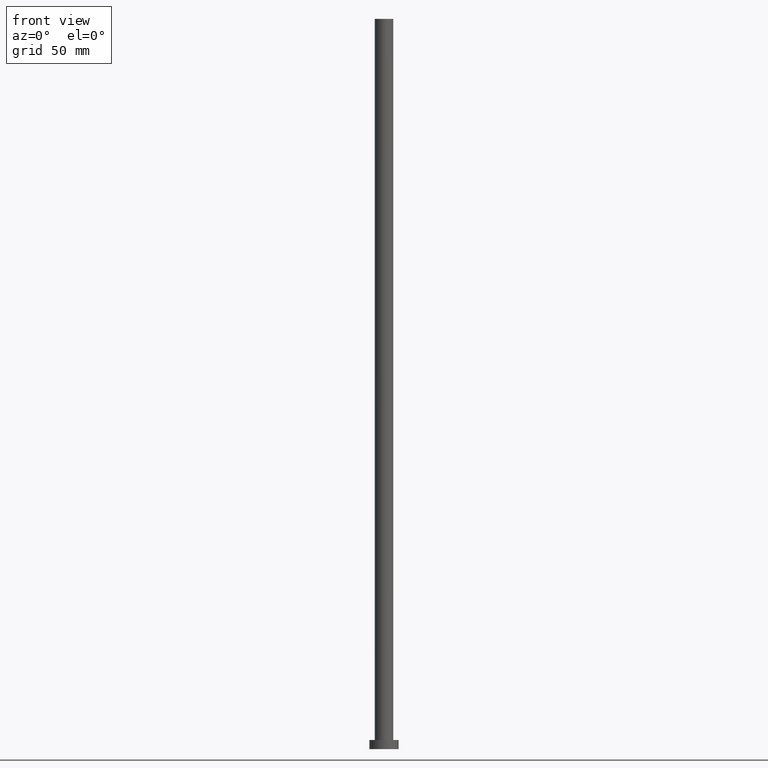
[diagram: clean part render]
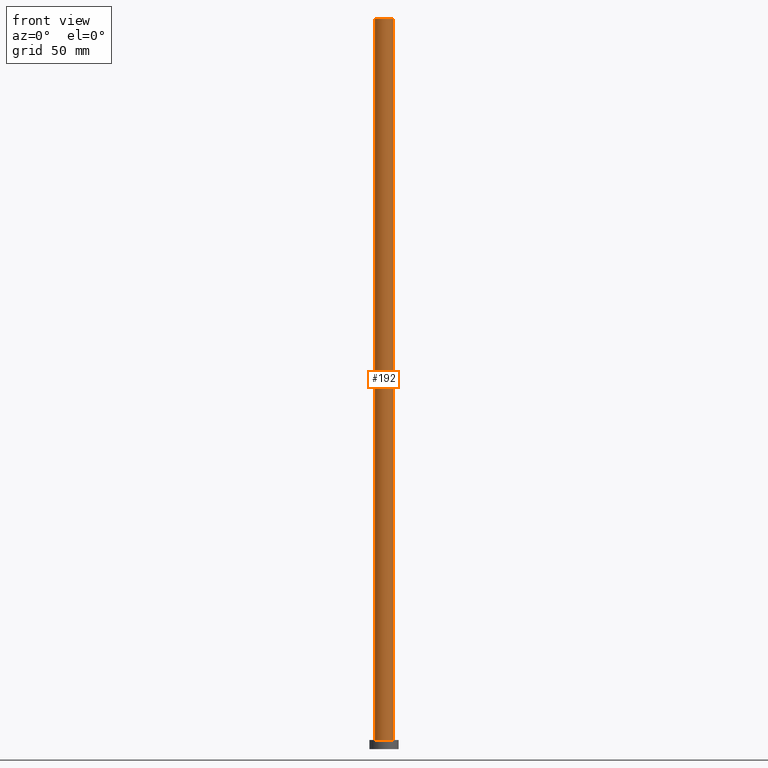
[diagram: same view with one face highlighted and labeled with its STEP entity id]
A machine part, front view. The second image highlights one B-rep face of the part: STEP entity #192.
In plain terms, the highlighted cylindrical surface (edge-blend (fillet) strip) has radius 5.1 mm, axis along (-0, -0, -1).
Its self-contained STEP definition (entity closure, byte-faithful):
#3 = DIRECTION ( 'NONE',  ( 0.000000000000000000, 0.000000000000000000, 1.000000000000000000 ) ) ;
#5 = EDGE_CURVE ( 'NONE', #151, #147, #227, .T. ) ;
#8 = CARTESIAN_POINT ( 'NONE',  ( 5.100000000000001421, 6.245698675651501825E-16, 400.0000000000000000 ) ) ;
#18 = LINE ( 'NONE', #53, #52 ) ;
#23 = ORIENTED_EDGE ( 'NONE', *, *, #186, .T. ) ;
#34 = EDGE_CURVE ( 'NONE', #147, #97, #18, .T. ) ;
#40 = AXIS2_PLACEMENT_3D ( 'NONE', #137, #230, #145 ) ;
#51 = DIRECTION ( 'NONE',  ( 1.000000000000000000, 0.000000000000000000, 0.000000000000000000 ) ) ;
#52 = VECTOR ( 'NONE', #93, 1000.000000000000000 ) ;
#53 = CARTESIAN_POINT ( 'NONE',  ( 5.100000000000001421, 6.245698675651501825E-16, 400.0000000000000000 ) ) ;
#79 = CIRCLE ( 'NONE', #222, 5.100000000000001421 ) ;
#81 = EDGE_CURVE ( 'NONE', #133, #97, #79, .T. ) ;
#93 = DIRECTION ( 'NONE',  ( -0.000000000000000000, -0.000000000000000000, -1.000000000000000000 ) ) ;
#97 = VERTEX_POINT ( 'NONE', #221 ) ;
#114 = ORIENTED_EDGE ( 'NONE', *, *, #5, .F. ) ;
#119 = DIRECTION ( 'NONE',  ( 1.000000000000000000, 0.000000000000000000, 0.000000000000000000 ) ) ;
#121 = DIRECTION ( 'NONE',  ( -0.000000000000000000, -0.000000000000000000, -1.000000000000000000 ) ) ;
#133 = VERTEX_POINT ( 'NONE', #193 ) ;
#137 = CARTESIAN_POINT ( 'NONE',  ( 0.000000000000000000, 0.000000000000000000, 400.0000000000000000 ) ) ;
#139 = CARTESIAN_POINT ( 'NONE',  ( 0.000000000000000000, 0.000000000000000000, 5.000000000000000000 ) ) ;
#141 = CARTESIAN_POINT ( 'NONE',  ( 0.000000000000000000, 0.000000000000000000, 400.0000000000000000 ) ) ;
#142 = ORIENTED_EDGE ( 'NONE', *, *, #34, .F. ) ;
#145 = DIRECTION ( 'NONE',  ( -1.000000000000000000, 0.000000000000000000, 0.000000000000000000 ) ) ;
#147 = VERTEX_POINT ( 'NONE', #8 ) ;
#151 = VERTEX_POINT ( 'NONE', #159 ) ;
#157 = CYLINDRICAL_SURFACE ( 'NONE', #40, 5.100000000000001421 ) ;
#159 = CARTESIAN_POINT ( 'NONE',  ( -5.100000000000001421, 0.000000000000000000, 400.0000000000000000 ) ) ;
#170 = CARTESIAN_POINT ( 'NONE',  ( -5.100000000000001421, 0.000000000000000000, 400.0000000000000000 ) ) ;
#172 = FACE_OUTER_BOUND ( 'NONE', #249, .T. ) ;
#183 = AXIS2_PLACEMENT_3D ( 'NONE', #141, #217, #51 ) ;
#186 = EDGE_CURVE ( 'NONE', #151, #133, #191, .T. ) ;
#190 = VECTOR ( 'NONE', #121, 1000.000000000000000 ) ;
#191 = LINE ( 'NONE', #170, #190 ) ;
#192 = ADVANCED_FACE ( 'NONE', ( #172 ), #157, .T. ) ;
#193 = CARTESIAN_POINT ( 'NONE',  ( -5.100000000000001421, 0.000000000000000000, 5.000000000000000000 ) ) ;
#217 = DIRECTION ( 'NONE',  ( 0.000000000000000000, 0.000000000000000000, 1.000000000000000000 ) ) ;
#221 = CARTESIAN_POINT ( 'NONE',  ( 5.100000000000001421, 6.245698675651501825E-16, 5.000000000000000000 ) ) ;
#222 = AXIS2_PLACEMENT_3D ( 'NONE', #139, #3, #119 ) ;
#227 = CIRCLE ( 'NONE', #183, 5.100000000000001421 ) ;
#230 = DIRECTION ( 'NONE',  ( -0.000000000000000000, -0.000000000000000000, -1.000000000000000000 ) ) ;
#233 = ORIENTED_EDGE ( 'NONE', *, *, #81, .T. ) ;
#249 = EDGE_LOOP ( 'NONE', ( #142, #114, #23, #233 ) ) ;